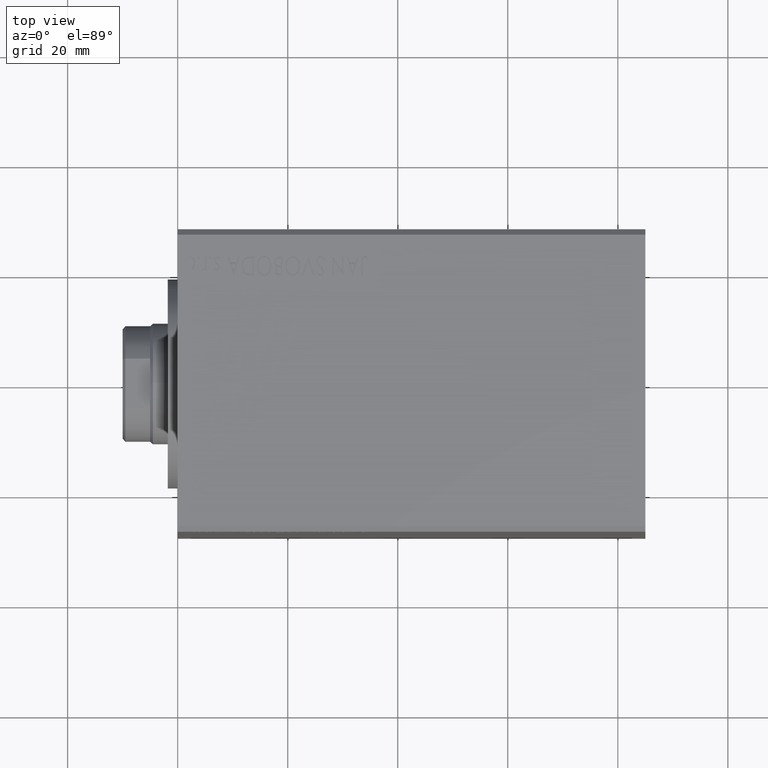
[diagram: clean part render]
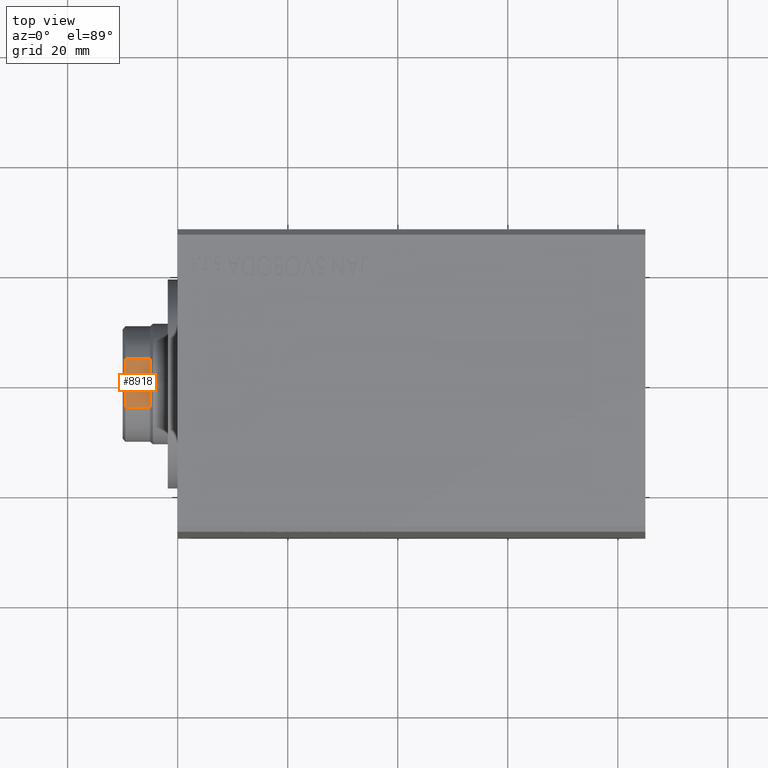
[diagram: same view with one face highlighted and labeled with its STEP entity id]
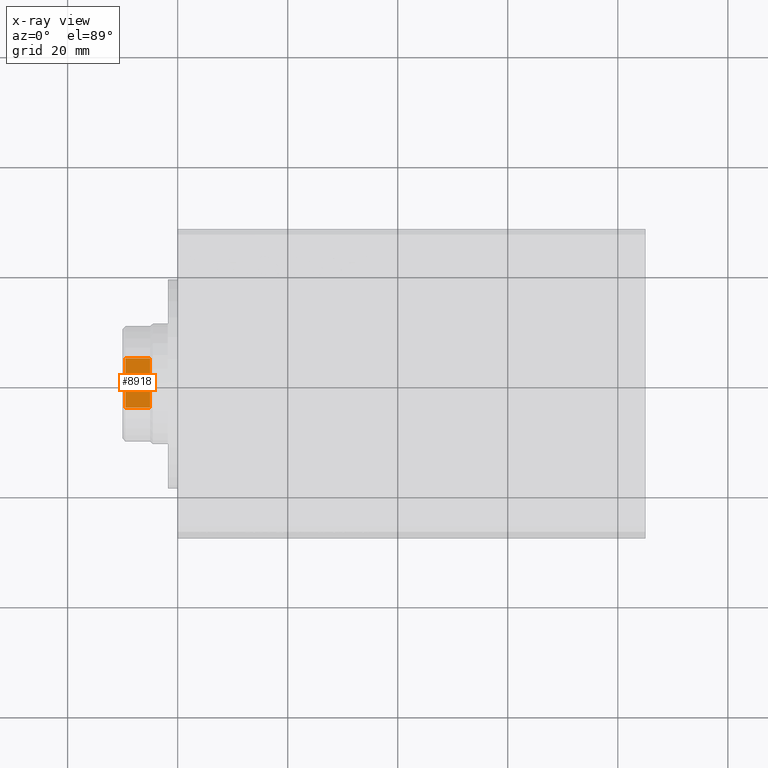
[diagram: x-ray of the same camera — body ghosted, the highlighted face saturated]
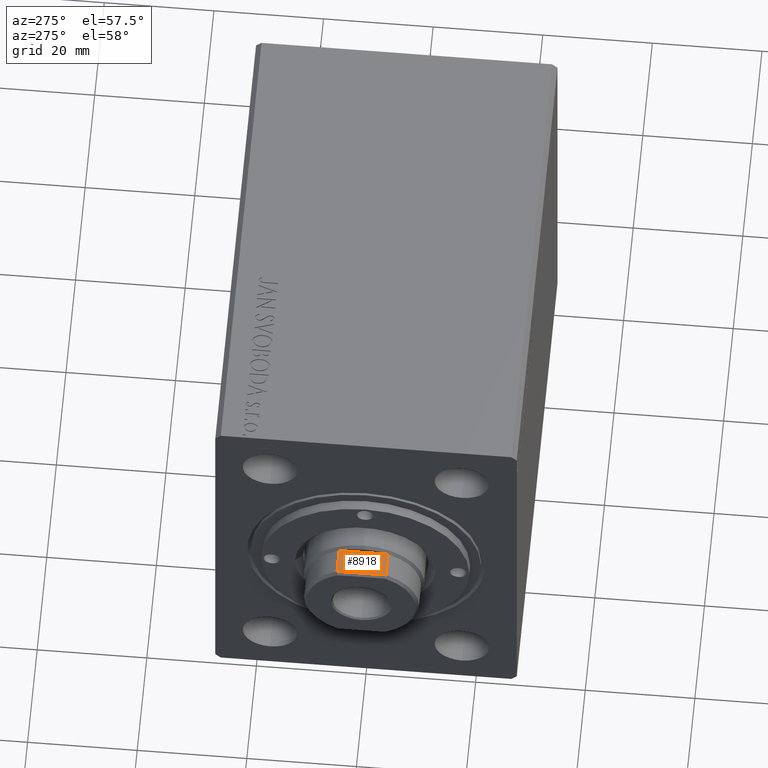
[diagram: same view with one face highlighted and labeled with its STEP entity id]
A machine part, top view. The second image highlights one B-rep face of the part: STEP entity #8918.
The next image is the same camera in x-ray: the body ghosted, the highlighted face saturated — about 0% of this face is hidden behind the body in this view.
A second angle (auxiliary view) of the same face is appended — the face is thin or edge-on in the first view.
In plain terms, the highlighted planar face has unit normal (0, 0, -1).
Its self-contained STEP definition (entity closure, byte-faithful):
#2781 = CARTESIAN_POINT ( 'NONE',  ( 9.500000000000000000, 4.472135954999602703, 76.20000000000000284 ) ) ;
#3632 = VECTOR ( 'NONE', #18653, 1000.000000000000000 ) ;
#5013 = CARTESIAN_POINT ( 'NONE',  ( 9.500000000000000000, -4.472135954999602703, 81.20000000000000284 ) ) ;
#5021 = EDGE_CURVE ( 'NONE', #36943, #39912, #21566, .T. ) ;
#5293 = EDGE_CURVE ( 'NONE', #37108, #39912, #25719, .T. ) ;
#5811 = LINE ( 'NONE', #33726, #20090 ) ;
#7870 = DIRECTION ( 'NONE',  ( 0.000000000000000000, 1.000000000000000000, 0.000000000000000000 ) ) ;
#8918 = ADVANCED_FACE ( 'NONE', ( #25987 ), #35611, .F. ) ;
#11737 = CARTESIAN_POINT ( 'NONE',  ( 9.500000000000000000, 4.472135954999602703, 81.20000000000000284 ) ) ;
#13943 = DIRECTION ( 'NONE',  ( -0.000000000000000000, -0.000000000000000000, -1.000000000000000000 ) ) ;
#14161 = CARTESIAN_POINT ( 'NONE',  ( 9.500000000000000000, -4.472135954999602703, 81.20000000000000284 ) ) ;
#14775 = CARTESIAN_POINT ( 'NONE',  ( 9.500000000000000000, -4.472135954999602703, 76.20000000000000284 ) ) ;
#18614 = DIRECTION ( 'NONE',  ( 0.000000000000000000, 0.000000000000000000, 1.000000000000000000 ) ) ;
#18653 = DIRECTION ( 'NONE',  ( -0.000000000000000000, -0.000000000000000000, -1.000000000000000000 ) ) ;
#18934 = CARTESIAN_POINT ( 'NONE',  ( 9.500000000000000000, -4.472135954999602703, 80.70000000000000284 ) ) ;
#19052 = DIRECTION ( 'NONE',  ( -1.000000000000000000, 0.000000000000000000, 0.000000000000000000 ) ) ;
#20090 = VECTOR ( 'NONE', #29706, 1000.000000000000000 ) ;
#21566 = LINE ( 'NONE', #11737, #3632 ) ;
#22364 = ORIENTED_EDGE ( 'NONE', *, *, #23617, .T. ) ;
#23617 = EDGE_CURVE ( 'NONE', #33863, #37108, #38513, .T. ) ;
#25719 = LINE ( 'NONE', #14775, #37164 ) ;
#25987 = FACE_OUTER_BOUND ( 'NONE', #42406, .T. ) ;
#28303 = VECTOR ( 'NONE', #13943, 1000.000000000000000 ) ;
#28780 = CARTESIAN_POINT ( 'NONE',  ( 9.500000000000000000, -4.472135954999602703, 76.20000000000000284 ) ) ;
#29365 = ORIENTED_EDGE ( 'NONE', *, *, #32867, .T. ) ;
#29706 = DIRECTION ( 'NONE',  ( 0.000000000000000000, -1.000000000000000000, 0.000000000000000000 ) ) ;
#30270 = ORIENTED_EDGE ( 'NONE', *, *, #5293, .T. ) ;
#31542 = AXIS2_PLACEMENT_3D ( 'NONE', #5013, #19052, #18614 ) ;
#32867 = EDGE_CURVE ( 'NONE', #36943, #33863, #5811, .T. ) ;
#33726 = CARTESIAN_POINT ( 'NONE',  ( 9.500000000000000000, -4.472135954999602703, 80.70000000000000284 ) ) ;
#33863 = VERTEX_POINT ( 'NONE', #18934 ) ;
#33935 = CARTESIAN_POINT ( 'NONE',  ( 9.500000000000000000, 4.472135954999602703, 80.70000000000000284 ) ) ;
#35611 = PLANE ( 'NONE',  #31542 ) ;
#35899 = ORIENTED_EDGE ( 'NONE', *, *, #5021, .F. ) ;
#36943 = VERTEX_POINT ( 'NONE', #33935 ) ;
#37108 = VERTEX_POINT ( 'NONE', #28780 ) ;
#37164 = VECTOR ( 'NONE', #7870, 1000.000000000000000 ) ;
#38513 = LINE ( 'NONE', #14161, #28303 ) ;
#39912 = VERTEX_POINT ( 'NONE', #2781 ) ;
#42406 = EDGE_LOOP ( 'NONE', ( #35899, #29365, #22364, #30270 ) ) ;